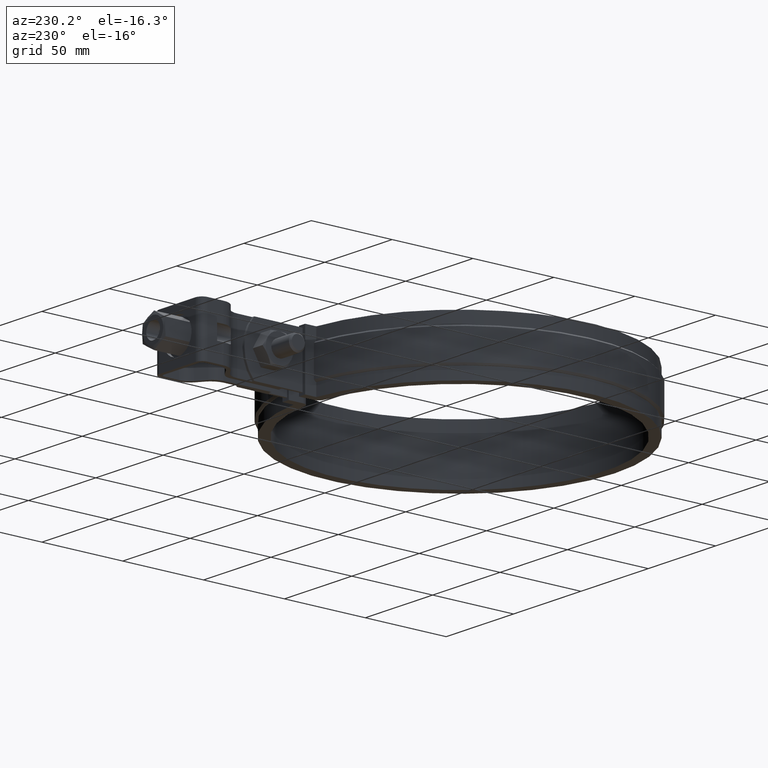
[diagram: clean part render]
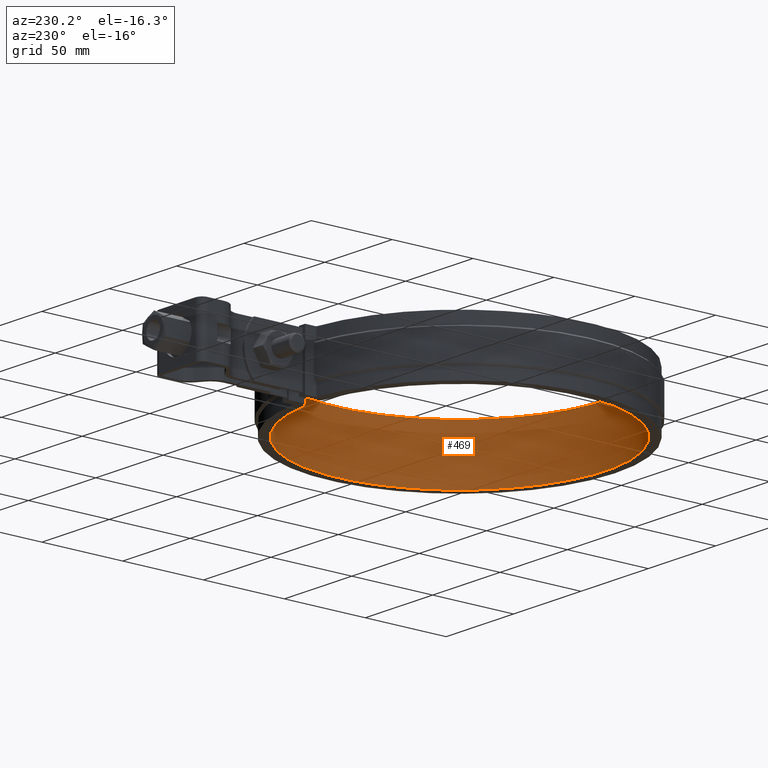
[diagram: same view with one face highlighted and labeled with its STEP entity id]
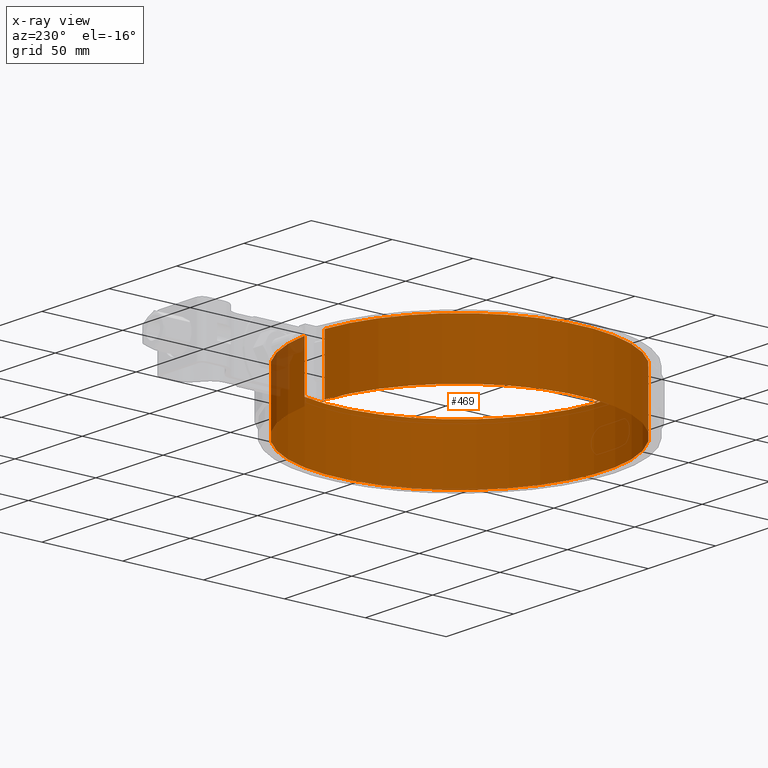
[diagram: x-ray of the same camera — body ghosted, the highlighted face saturated]
A machine part, auxiliary view. The second image highlights one B-rep face of the part: STEP entity #469.
The next image is the same camera in x-ray: the body ghosted, the highlighted face saturated — about 2% of this face is hidden behind the body in this view.
In plain terms, the highlighted cylindrical surface (partial cylindrical patch) has radius 90 mm, axis along (0, 0, -1).
Its self-contained STEP definition (entity closure, byte-faithful):
#469 = ADVANCED_FACE( '', ( #836 ), #837, .F. );
#836 = FACE_OUTER_BOUND( '', #1971, .T. );
#837 = CYLINDRICAL_SURFACE( '', #1972, 90.0000000000000 );
#1971 = EDGE_LOOP( '', ( #4774, #4775, #4776, #4777 ) );
#1972 = AXIS2_PLACEMENT_3D( '', #4778, #4779, #4780 );
#4774 = ORIENTED_EDGE( '', *, *, #5406, .F. );
#4775 = ORIENTED_EDGE( '', *, *, #5407, .F. );
#4776 = ORIENTED_EDGE( '', *, *, #5404, .T. );
#4777 = ORIENTED_EDGE( '', *, *, #5402, .T. );
#4778 = CARTESIAN_POINT( '', ( 0.000000000000000, 6.93889390390723E-014, -33.5000000000000 ) );
#4779 = DIRECTION( '', ( 0.000000000000000, 0.000000000000000, -1.00000000000000 ) );
#4780 = DIRECTION( '', ( 0.000000000000000, 1.00000000000000, 0.000000000000000 ) );
#5402 = EDGE_CURVE( '', #6175, #6173, #6176, .T. );
#5404 = EDGE_CURVE( '', #6178, #6175, #6179, .T. );
#5406 = EDGE_CURVE( '', #6181, #6173, #6182, .T. );
#5407 = EDGE_CURVE( '', #6178, #6181, #6183, .T. );
#6173 = VERTEX_POINT( '', #9501 );
#6175 = VERTEX_POINT( '', #9503 );
#6176 = LINE( '', #9504, #9505 );
#6178 = VERTEX_POINT( '', #9507 );
#6179 = CIRCLE( '', #9508, 90.0000000000000 );
#6181 = VERTEX_POINT( '', #9510 );
#6182 = CIRCLE( '', #9511, 90.0000000000000 );
#6183 = LINE( '', #9512, #9513 );
#9501 = CARTESIAN_POINT( '', ( -7.46808510638291, 89.6896187127798, 1.50000000000000 ) );
#9503 = CARTESIAN_POINT( '', ( -7.46808510638291, 89.6896187127798, -33.5000000000000 ) );
#9504 = CARTESIAN_POINT( '', ( -7.46808510638291, 89.6896187127798, -33.5000000000000 ) );
#9505 = VECTOR( '', #10192, 1000.00000000000 );
#9507 = CARTESIAN_POINT( '', ( 7.46808510638304, 89.6896187127798, -33.5000000000000 ) );
#9508 = AXIS2_PLACEMENT_3D( '', #10196, #10197, #10198 );
#9510 = CARTESIAN_POINT( '', ( 7.46808510638304, 89.6896187127798, 1.50000000000000 ) );
#9511 = AXIS2_PLACEMENT_3D( '', #10202, #10203, #10204 );
#9512 = CARTESIAN_POINT( '', ( 7.46808510638304, 89.6896187127798, -33.5000000000000 ) );
#9513 = VECTOR( '', #10205, 1000.00000000000 );
#10192 = DIRECTION( '', ( 0.000000000000000, 0.000000000000000, 1.00000000000000 ) );
#10196 = CARTESIAN_POINT( '', ( 0.000000000000000, 6.93889390390723E-014, -33.5000000000000 ) );
#10197 = DIRECTION( '', ( 0.000000000000000, 0.000000000000000, -1.00000000000000 ) );
#10198 = DIRECTION( '', ( 1.00000000000000, 0.000000000000000, 0.000000000000000 ) );
#10202 = CARTESIAN_POINT( '', ( 0.000000000000000, 6.93889390390723E-014, 1.50000000000000 ) );
#10203 = DIRECTION( '', ( 0.000000000000000, 0.000000000000000, -1.00000000000000 ) );
#10204 = DIRECTION( '', ( 1.00000000000000, 0.000000000000000, 0.000000000000000 ) );
#10205 = DIRECTION( '', ( 0.000000000000000, 0.000000000000000, 1.00000000000000 ) );